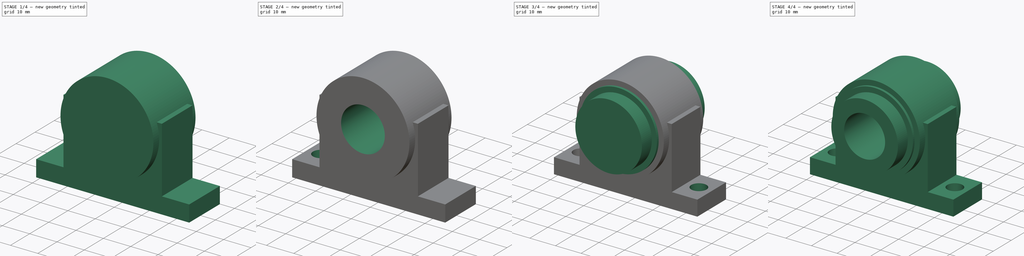
[diagram: build sequence overview — one tinted view per stage of 4, left to right]
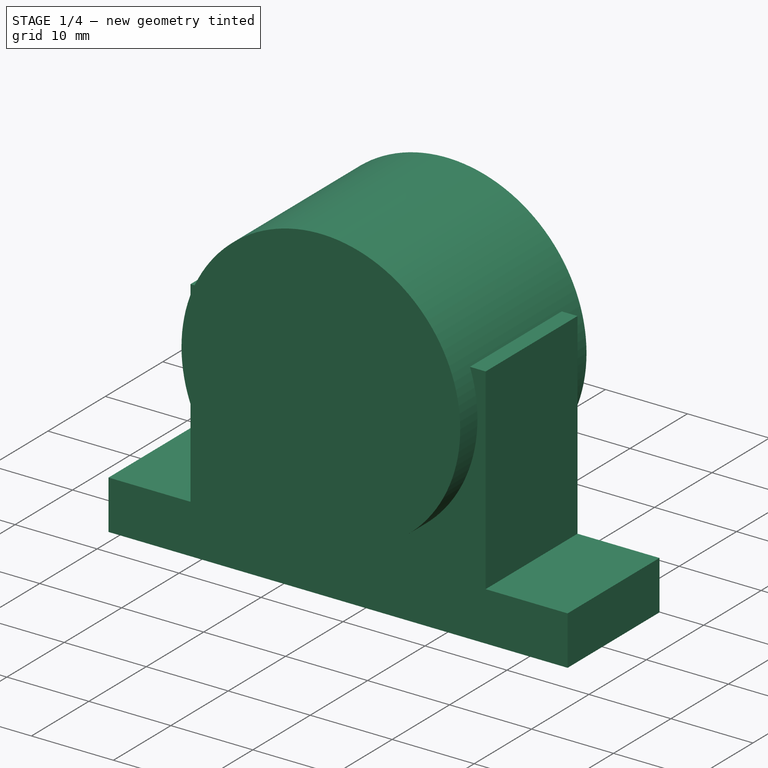
[diagram: stage 1 of 4 — iso view after this stage's code; geometry added in this stage tinted green]
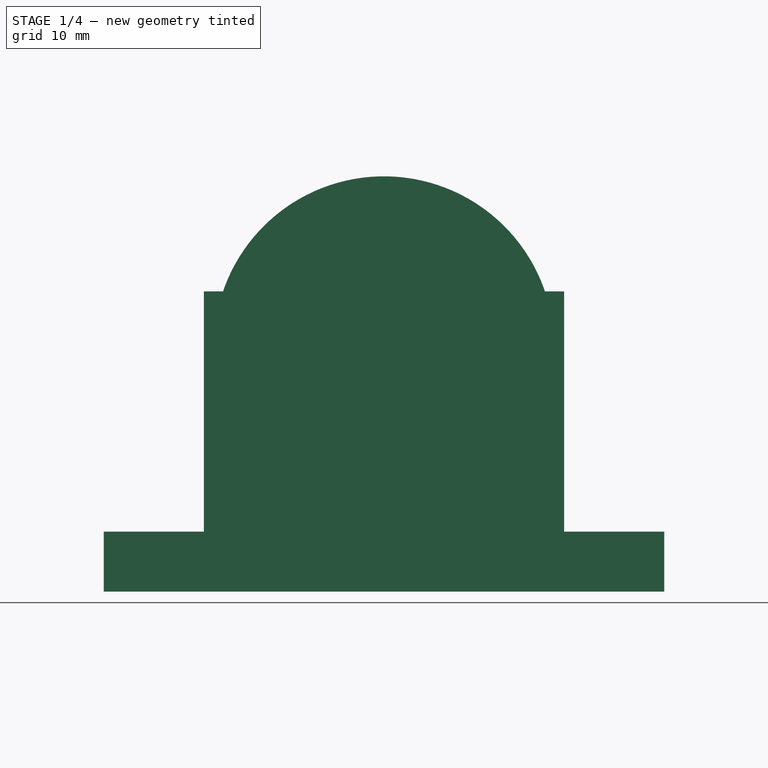
[diagram: stage 1 of 4 — front view after this stage's code; geometry added in this stage tinted green]
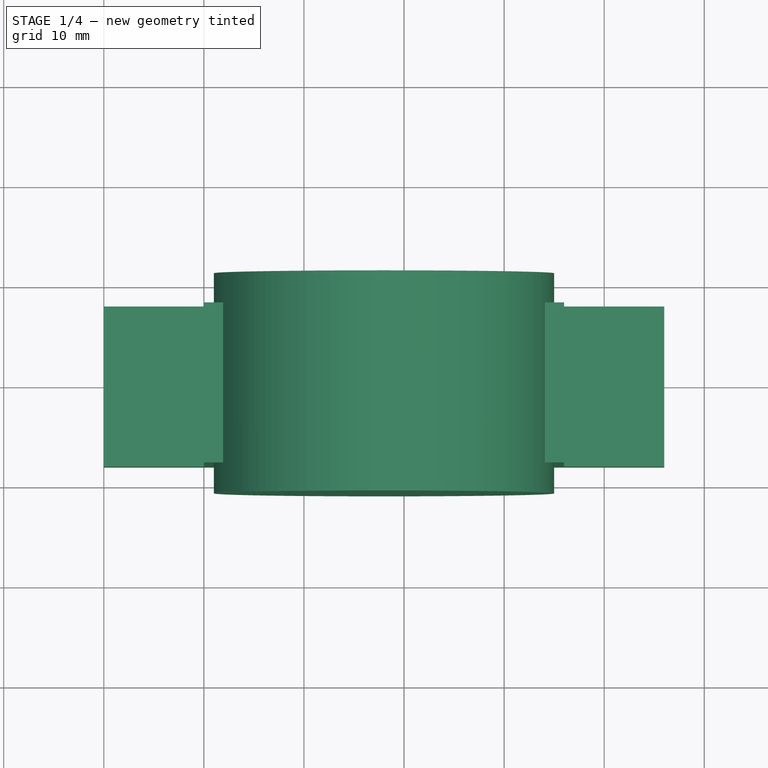
[diagram: stage 1 of 4 — top view after this stage's code; geometry added in this stage tinted green]
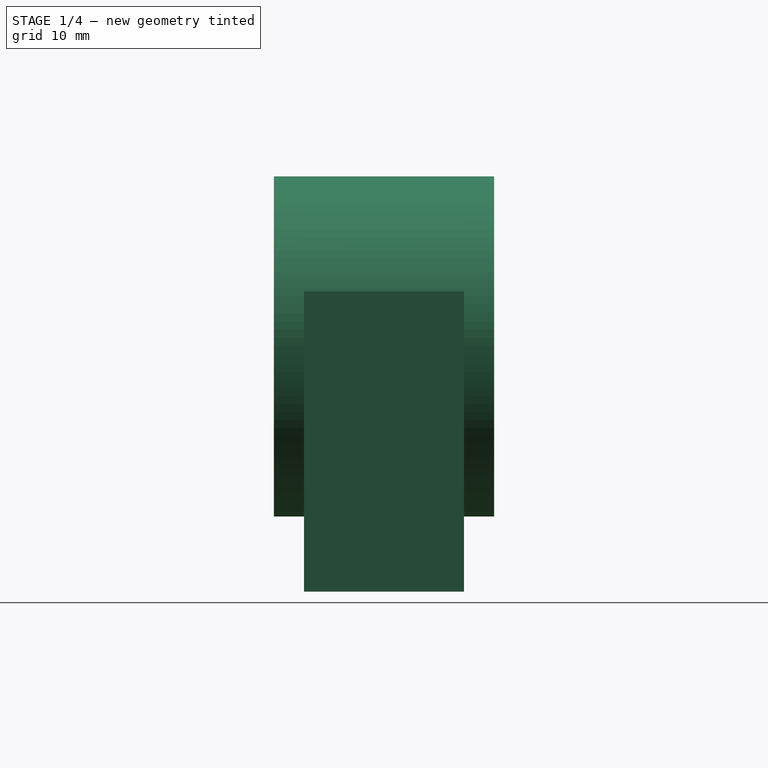
[diagram: stage 1 of 4 — right view after this stage's code; geometry added in this stage tinted green]
FCSTD DOCUMENT  (FreeCAD 0.14R3347 (Git))
Label: A_P
License: CC-BY 3.0
LicenseURL: http://creativecommons.org/licenses/by/3.0/
objects: Sketcher::SketchObject×8, PartDesign::Pad×4, PartDesign::Pocket×4, Part::MultiFuse×2
note: 26 computed .brp shape members not serialized (recipe doc carries the construction recipe); baked Part::Feature solids carry a one-line shape summary decoded from their .brp

FEATURE [Sketcher::SketchObject] Sketch
  Placement = pos=(0,0,0) rot=(-1,0,0;4.71239rad)
  sketch-geometry (9):
    g0: LineSegment StartX=0 StartY=0 StartZ=0 EndX=56 EndY=0 EndZ=0
    g1: LineSegment StartX=56 StartY=0 StartZ=0 EndX=56 EndY=6 EndZ=0
    g2: LineSegment StartX=56 StartY=6 StartZ=0 EndX=46 EndY=6 EndZ=0
    g3: LineSegment StartX=46 StartY=6 StartZ=0 EndX=46 EndY=30 EndZ=0
    g4: LineSegment StartX=46 StartY=30 StartZ=0 EndX=10 EndY=30 EndZ=0
    g5: LineSegment StartX=10 StartY=30 StartZ=0 EndX=10 EndY=6 EndZ=0
    g6: LineSegment StartX=10 StartY=6 StartZ=0 EndX=0 EndY=6 EndZ=0
    g7: LineSegment StartX=0 StartY=6 StartZ=0 EndX=0 EndY=0 EndZ=0
    g8: LineSegment [constr] StartX=28 StartY=0 StartZ=0 EndX=28 EndY=30 EndZ=0
  constraints (26):
    c: Coincident(g-1,g0)
    c: Horizontal(g0)
    c: Coincident(g0,g1)
    c: Vertical(g1)
    c: Coincident(g1,g2)
    c: Horizontal(g2)
    c: Coincident(g2,g3)
    c: Vertical(g3)
    c: Coincident(g3,g4)
    c: Horizontal(g4)
    c: Coincident(g4,g5)
    c: Vertical(g5)
    c: Coincident(g5,g6)
    c: Horizontal(g6)
    c: Coincident(g6,g7)
    c: Coincident(g7,g0)
    c: Vertical(g7)
    c: PointOnObject(g8,g0)
    c: PointOnObject(g8,g4)
    c: Vertical(g8)
    c: Symmetric(g5,g2,g8)
    c: DistanceX(g6) = -10
    c: DistanceY(g1) = 6
    c: DistanceX(g0) = 56
    c: Symmetric(g6,g1,g8)
    c: DistanceY(g3) = 24
FEATURE [PartDesign::Pad] Pad  label="support alu"
  Length = 16
  Length2 = 100
  Midplane = true
  Placement = pos=(0,0,0) rot=(-1,0,0;4.71239rad)
  Sketch = -> Sketch
  Type = 0
FEATURE [Sketcher::SketchObject] Sketch001
  Placement = pos=(0,0,0) rot=(-1,0,0;4.71239rad)
  sketch-geometry (3):
    g0: LineSegment [constr] StartX=0 StartY=0 StartZ=0 EndX=56 EndY=0 EndZ=0
    g1: LineSegment [constr] StartX=28 StartY=0 StartZ=0 EndX=28 EndY=61.9347 EndZ=0
    g2: Circle CenterX=28 CenterY=24.5 CenterZ=0 NormalX=0 NormalY=0 NormalZ=1 Radius=17
  constraints (10):
    c: Coincident(g0,g-1)
    c: Horizontal(g0)
    c: PointOnObject(g1,g0)
    c: Vertical(g1)
    c: Symmetric(g0,g-1,g1)
    c: DistanceY(g1) = 61.9347
    c: DistanceX(g0) = 56
    c: PointOnObject(g2,g1)
    c: Radius(g2) = 17
    c: DistanceY(g2,g0) = -24.5
FEATURE [PartDesign::Pad] Pad001  label="cylindre alu"
  Length = 22
  Length2 = 100
  Midplane = true
  Placement = pos=(0,0,0) rot=(-1,0,0;4.71239rad)
  Sketch = -> Sketch001
  Type = 0
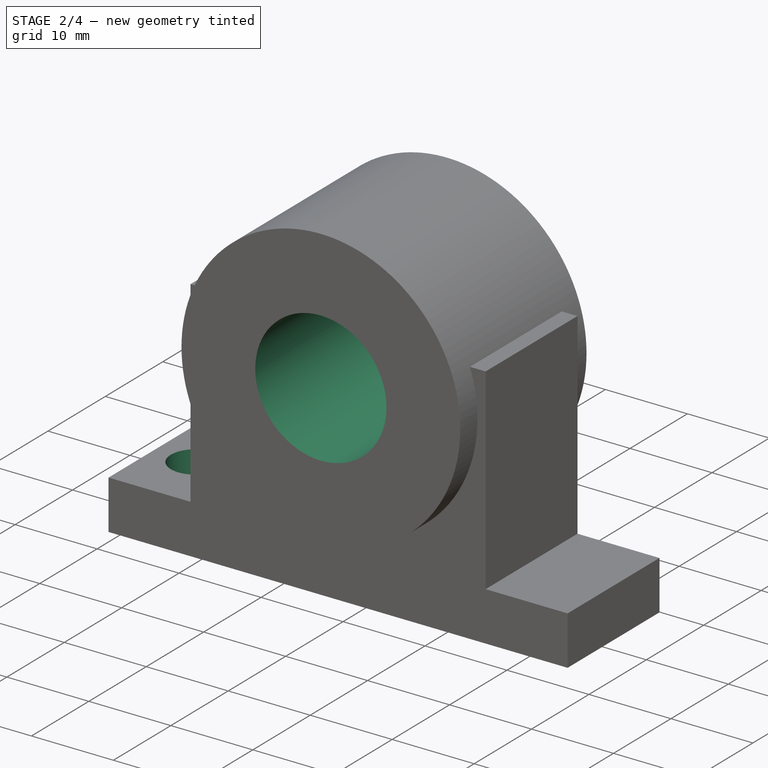
[diagram: stage 2 of 4 — iso view after this stage's code; geometry added in this stage tinted green]
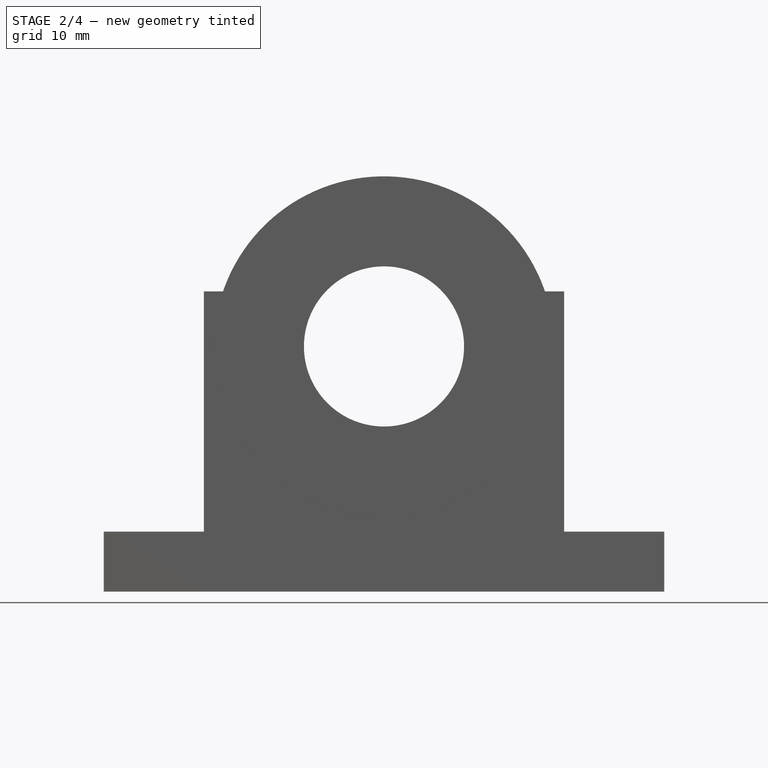
[diagram: stage 2 of 4 — front view after this stage's code; geometry added in this stage tinted green]
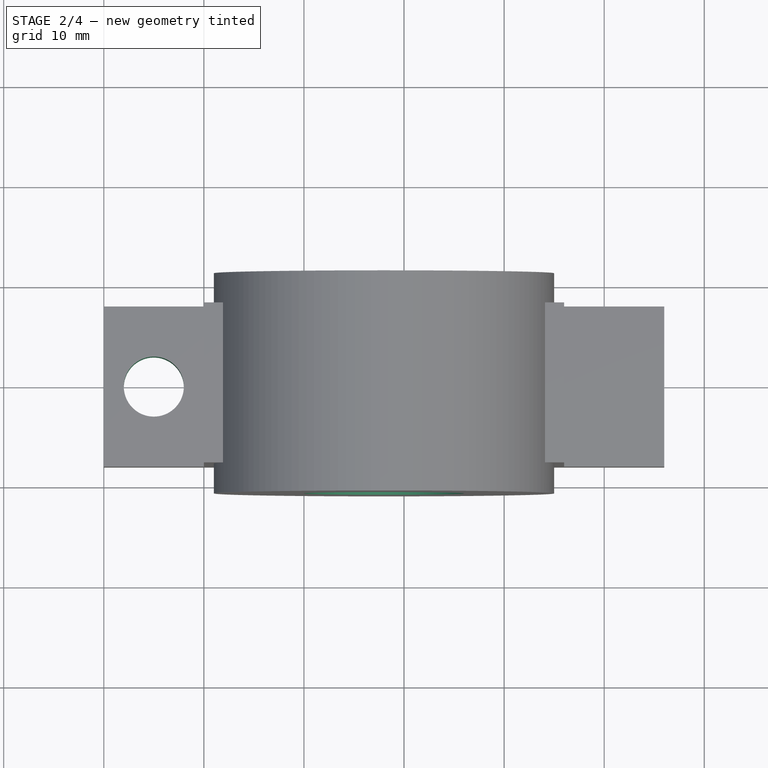
[diagram: stage 2 of 4 — top view after this stage's code; geometry added in this stage tinted green]
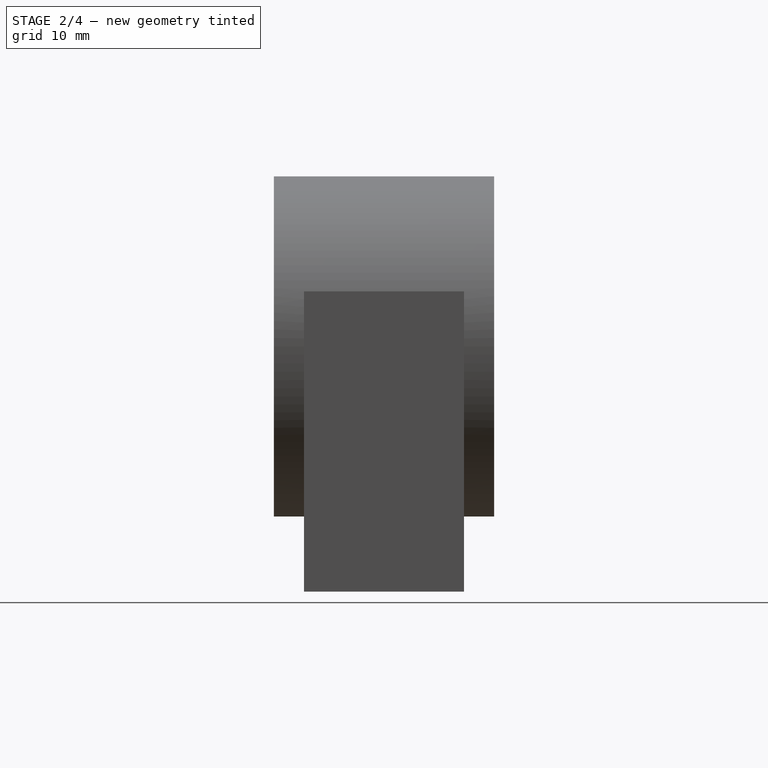
[diagram: stage 2 of 4 — right view after this stage's code; geometry added in this stage tinted green]
FEATURE [Part::MultiFuse] Fusion  label="bloc alu"
  Shapes = -> [Pad,Pad001]
FEATURE [Sketcher::SketchObject] Sketch004  label="guide"
  Placement = pos=(0,-11,0) rot=(1,0,0;1.5708rad)
  Support = -> Fusion [Face14]
  sketch-geometry (3):
    g0: LineSegment [constr] StartX=0 StartY=0 StartZ=0 EndX=56 EndY=0 EndZ=0
    g1: LineSegment [constr] StartX=28 StartY=0 StartZ=0 EndX=28 EndY=61.9347 EndZ=0
    g2: Circle CenterX=28 CenterY=24.5 CenterZ=0 NormalX=0 NormalY=0 NormalZ=1 Radius=8
  constraints (10):
    c: Coincident(g0,g-1)
    c: Horizontal(g0)
    c: PointOnObject(g1,g0)
    c: Vertical(g1)
    c: Symmetric(g0,g-1,g1)
    c: DistanceY(g1) = 61.9347
    c: DistanceX(g0) = 56
    c: PointOnObject(g2,g1)
    c: Radius(g2) = 8
    c: DistanceY(g2,g0) = -24.5
FEATURE [PartDesign::Pocket] Pocket
  Length = 5
  Sketch = -> Sketch004
  Type = 1
FEATURE [Sketcher::SketchObject] Sketch006
  Placement = pos=(0,0,6) rot=(0,0,1;0rad)
  Support = -> Pocket [Face6]
  sketch-geometry (1):
    g0: Circle CenterX=5 CenterY=0 CenterZ=0 NormalX=0 NormalY=0 NormalZ=1 Radius=3
  constraints (3):
    c: PointOnObject(g0,g-1)
    c: Radius(g0) = 3
    c: DistanceX(g0) = 5
FEATURE [PartDesign::Pocket] Pocket002
  Length = 5
  Sketch = -> Sketch006
  Type = 1
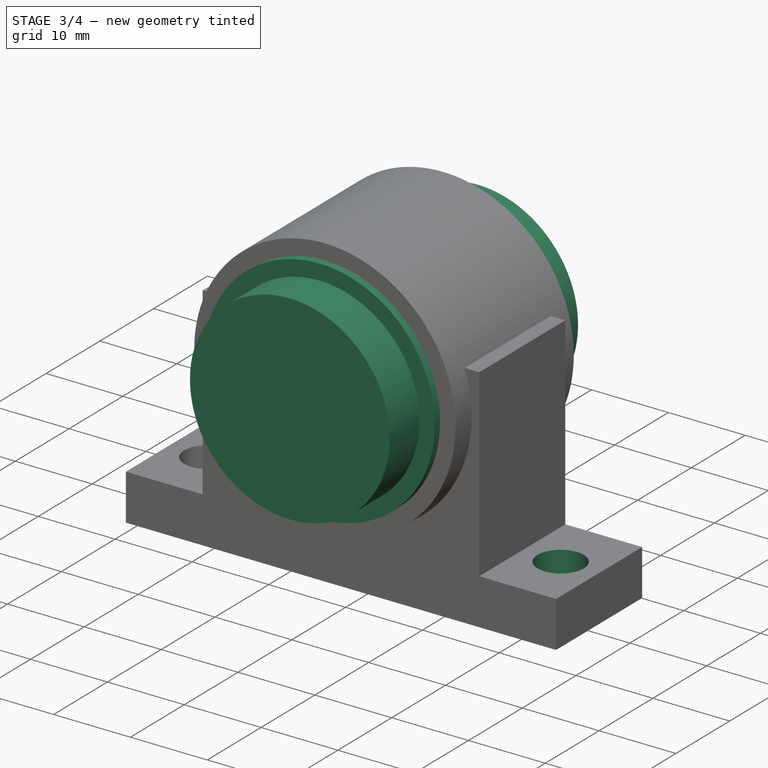
[diagram: stage 3 of 4 — iso view after this stage's code; geometry added in this stage tinted green]
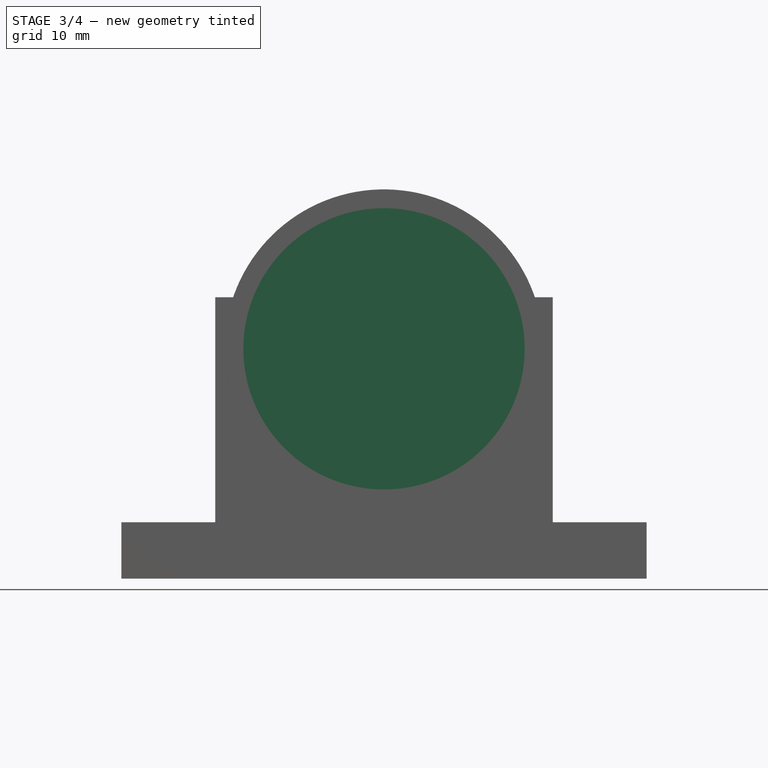
[diagram: stage 3 of 4 — front view after this stage's code; geometry added in this stage tinted green]
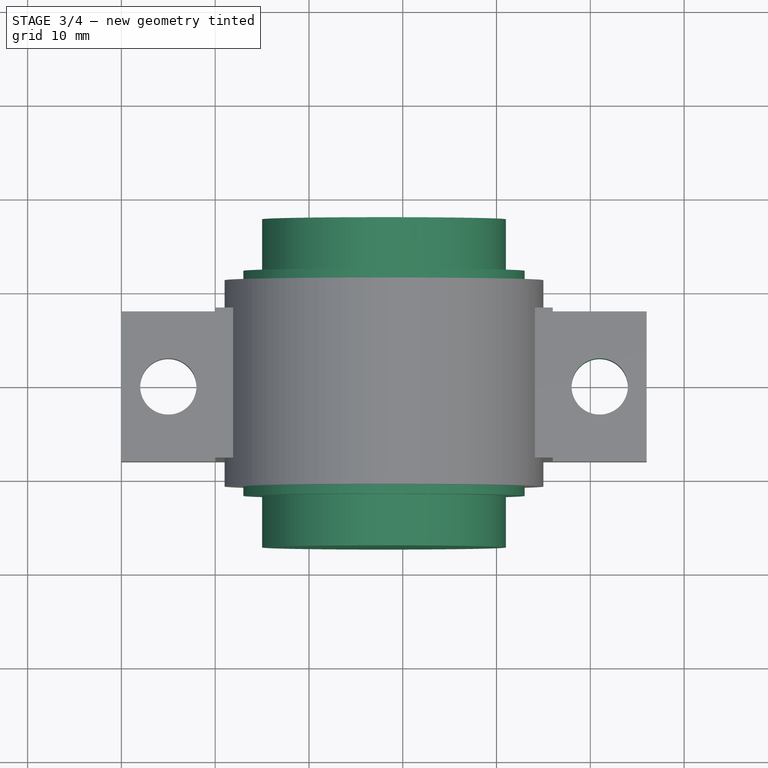
[diagram: stage 3 of 4 — top view after this stage's code; geometry added in this stage tinted green]
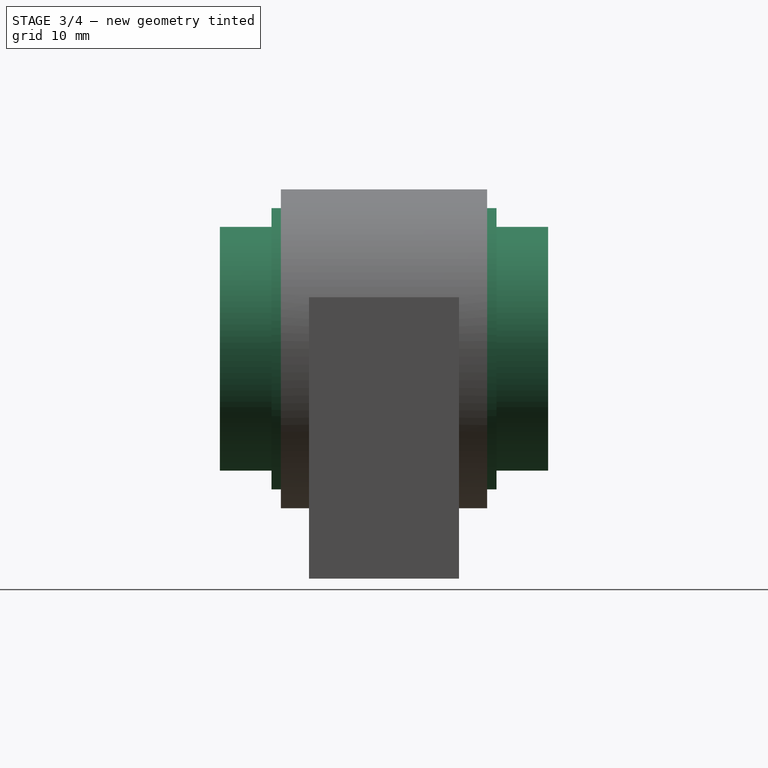
[diagram: stage 3 of 4 — right view after this stage's code; geometry added in this stage tinted green]
FEATURE [Sketcher::SketchObject] Sketch002
  Placement = pos=(0,0,0) rot=(1,0,0;1.5708rad)
  sketch-geometry (3):
    g0: LineSegment [constr] StartX=0 StartY=0 StartZ=0 EndX=56 EndY=0 EndZ=0
    g1: LineSegment [constr] StartX=28 StartY=0 StartZ=0 EndX=28 EndY=61.9347 EndZ=0
    g2: Circle CenterX=28 CenterY=24.5 CenterZ=0 NormalX=0 NormalY=0 NormalZ=1 Radius=15
  constraints (10):
    c: Coincident(g0,g-1)
    c: Horizontal(g0)
    c: PointOnObject(g1,g0)
    c: Vertical(g1)
    c: Symmetric(g0,g-1,g1)
    c: DistanceY(g1) = 61.9347
    c: DistanceX(g0) = 56
    c: PointOnObject(g2,g1)
    c: Radius(g2) = 15
    c: DistanceY(g2,g0) = -24.5
FEATURE [PartDesign::Pad] Pad002
  Length = 24
  Length2 = 100
  Midplane = true
  Placement = pos=(0,0,0) rot=(1,0,0;1.5708rad)
  Sketch = -> Sketch002
  Type = 0
FEATURE [Sketcher::SketchObject] Sketch003
  Placement = pos=(0,0,0) rot=(1,0,0;1.5708rad)
  sketch-geometry (3):
    g0: LineSegment [constr] StartX=0 StartY=0 StartZ=0 EndX=56 EndY=0 EndZ=0
    g1: LineSegment [constr] StartX=28 StartY=0 StartZ=0 EndX=28 EndY=61.9347 EndZ=0
    g2: Circle CenterX=28 CenterY=24.5 CenterZ=0 NormalX=0 NormalY=0 NormalZ=1 Radius=13
  constraints (10):
    c: Coincident(g0,g-1)
    c: Horizontal(g0)
    c: PointOnObject(g1,g0)
    c: Vertical(g1)
    c: Symmetric(g0,g-1,g1)
    c: DistanceY(g1) = 61.9347
    c: DistanceX(g0) = 56
    c: PointOnObject(g2,g1)
    c: Radius(g2) = 13
    c: DistanceY(g2,g0) = -24.5
FEATURE [PartDesign::Pad] Pad003
  Length = 35
  Length2 = 100
  Midplane = true
  Placement = pos=(0,0,0) rot=(1,0,0;1.5708rad)
  Sketch = -> Sketch003
  Type = 0
FEATURE [Sketcher::SketchObject] Sketch007
  Placement = pos=(0,0,6) rot=(0,0,1;0rad)
  Support = -> Pocket002 [Face8]
  sketch-geometry (1):
    g0: Circle CenterX=51 CenterY=0 CenterZ=0 NormalX=0 NormalY=0 NormalZ=1 Radius=3
  constraints (3):
    c: PointOnObject(g0,g-1)
    c: Radius(g0) = 3
    c: DistanceX(g-1,g0) = 51
FEATURE [PartDesign::Pocket] Pocket003  label="alu"
  Length = 5
  Sketch = -> Sketch007
  Type = 1
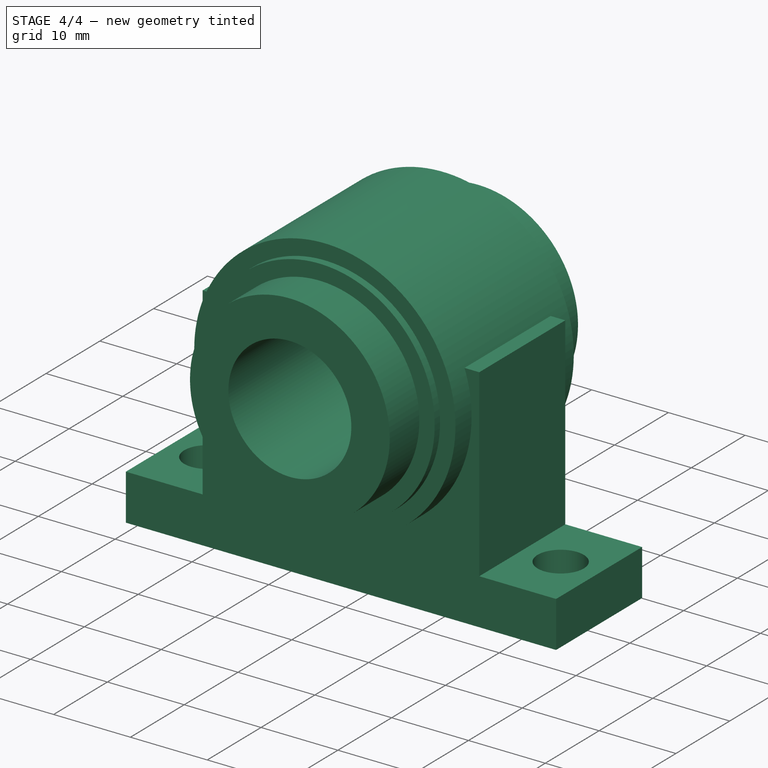
[diagram: stage 4 of 4 — iso view after this stage's code; geometry added in this stage tinted green]
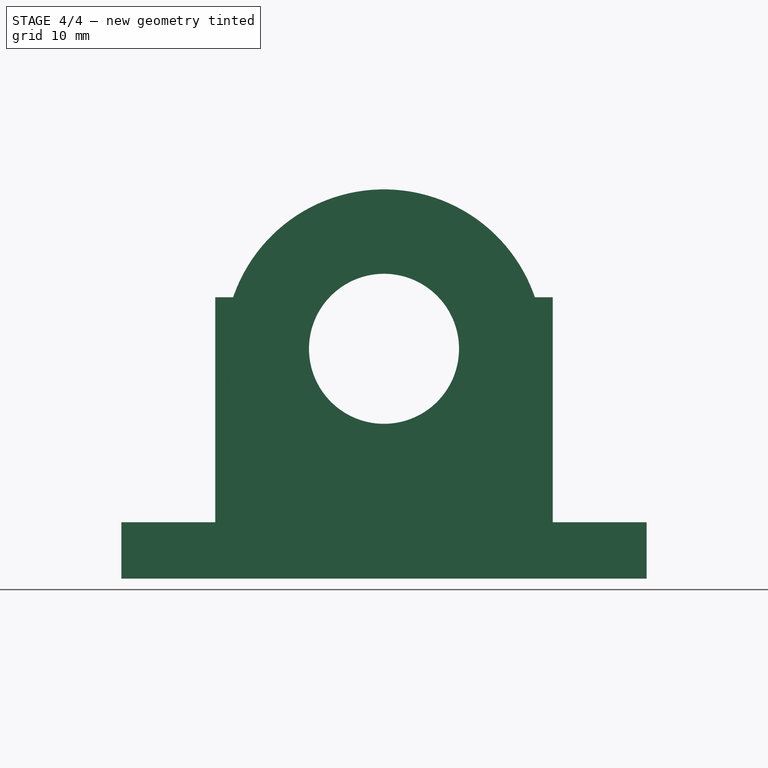
[diagram: stage 4 of 4 — front view after this stage's code; geometry added in this stage tinted green]
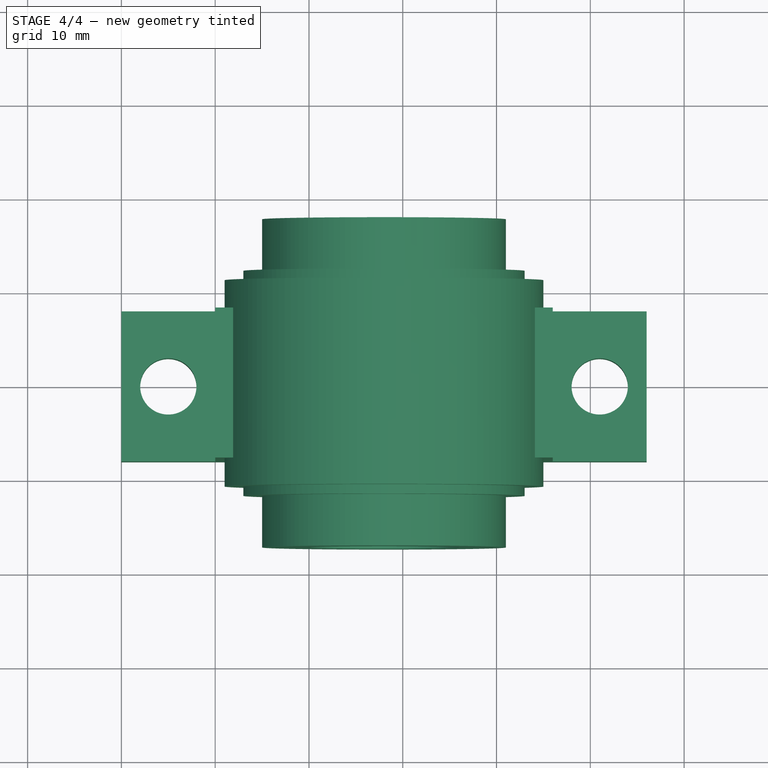
[diagram: stage 4 of 4 — top view after this stage's code; geometry added in this stage tinted green]
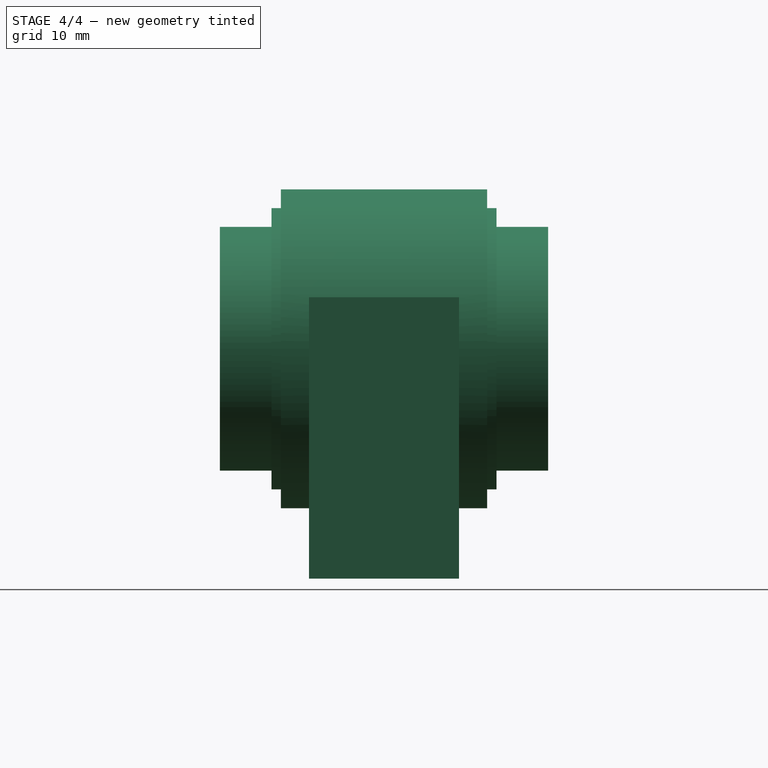
[diagram: stage 4 of 4 — right view after this stage's code; geometry added in this stage tinted green]
FEATURE [Part::MultiFuse] Fusion001  label="bloc plastique"
  Shapes = -> [Pad002,Pad003]
FEATURE [Sketcher::SketchObject] Sketch005  label="guide001"
  Placement = pos=(0,-17.5,0) rot=(1,0,0;1.5708rad)
  Support = -> Fusion001 [Face7]
  sketch-geometry (3):
    g0: LineSegment [constr] StartX=0 StartY=0 StartZ=0 EndX=56 EndY=0 EndZ=0
    g1: LineSegment [constr] StartX=28 StartY=0 StartZ=0 EndX=28 EndY=61.9347 EndZ=0
    g2: Circle CenterX=28 CenterY=24.5 CenterZ=0 NormalX=0 NormalY=0 NormalZ=1 Radius=8
  constraints (10):
    c: Coincident(g0,g-1)
    c: Horizontal(g0)
    c: PointOnObject(g1,g0)
    c: Vertical(g1)
    c: Symmetric(g0,g-1,g1)
    c: DistanceY(g1) = 61.9347
    c: DistanceX(g0) = 56
    c: PointOnObject(g2,g1)
    c: Radius(g2) = 8
    c: DistanceY(g2,g0) = -24.5
FEATURE [PartDesign::Pocket] Pocket001  label="flasque plastique"
  Length = 5
  Sketch = -> Sketch005
  Type = 1
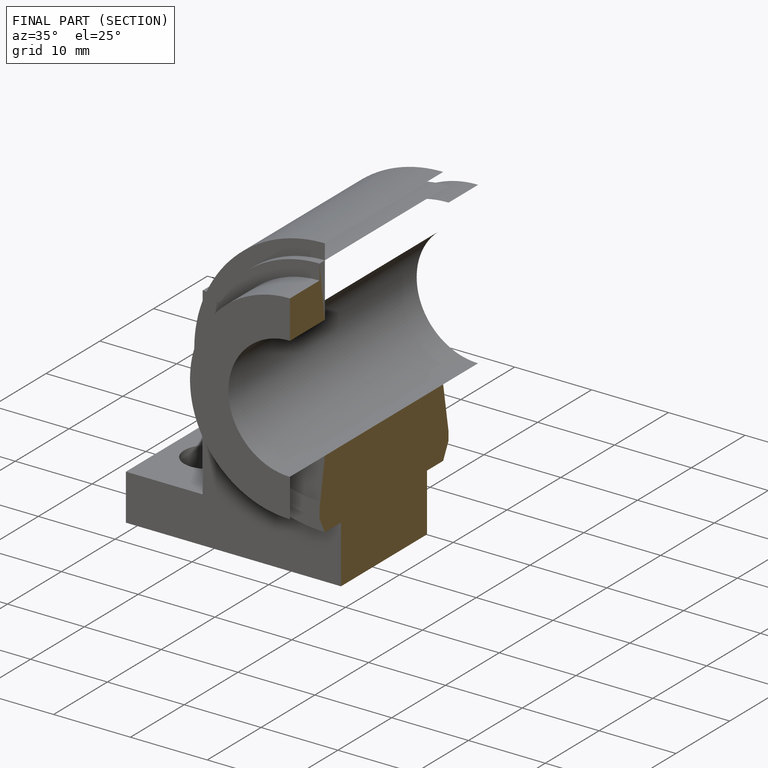
[diagram: finished part — half-section view (interior)]
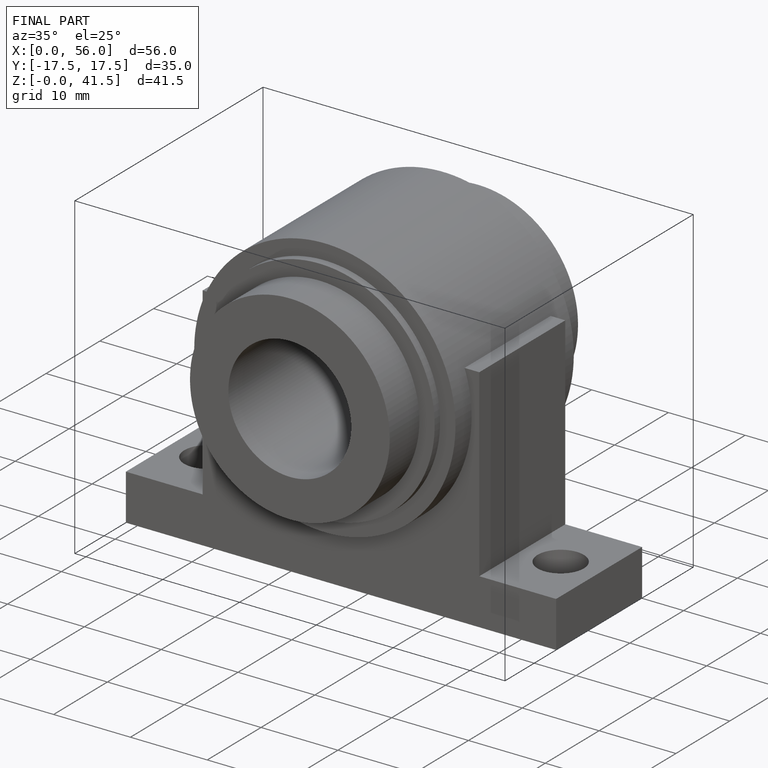
[diagram: finished part — iso view with bounding-box wireframe]
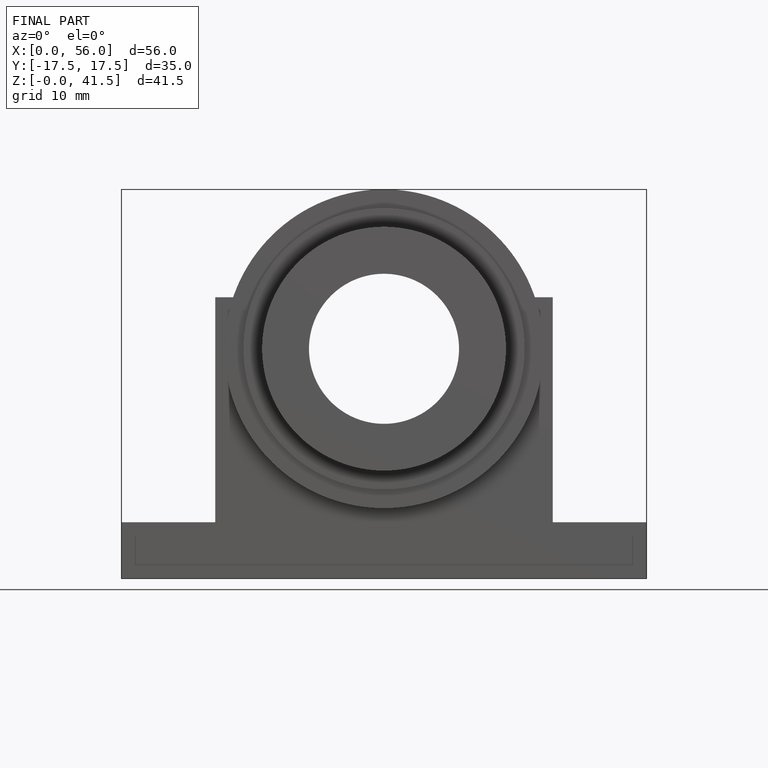
[diagram: finished part — front view with bounding-box wireframe]
